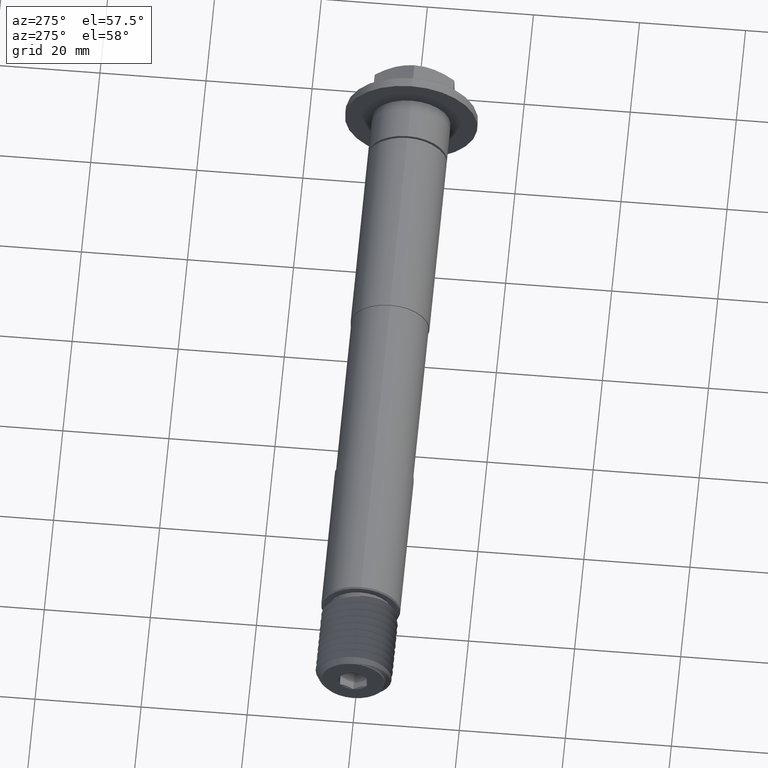
[diagram: clean part render]
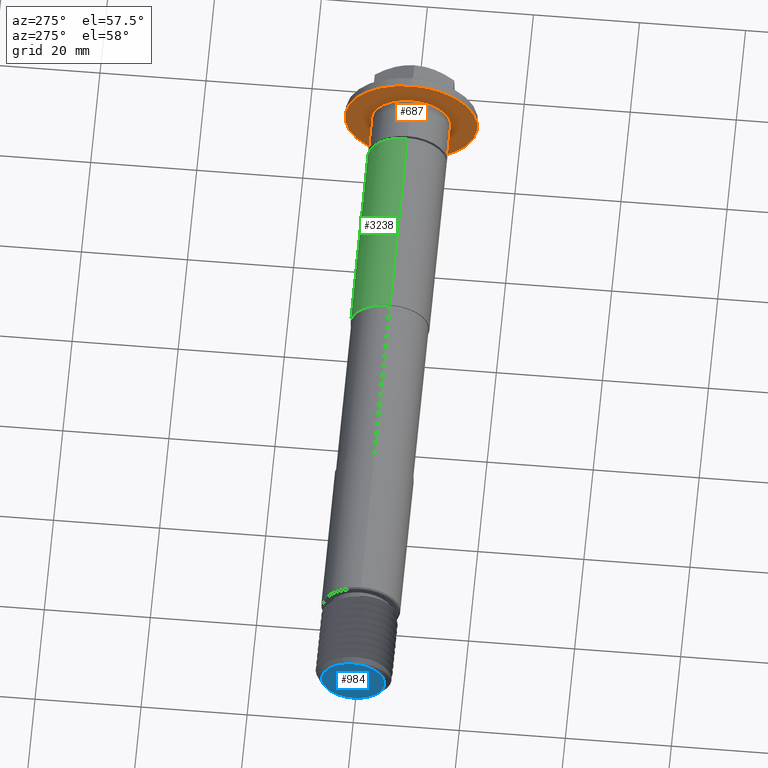
[diagram: same view with three faces highlighted in distinct colors, each labeled with its STEP entity id]
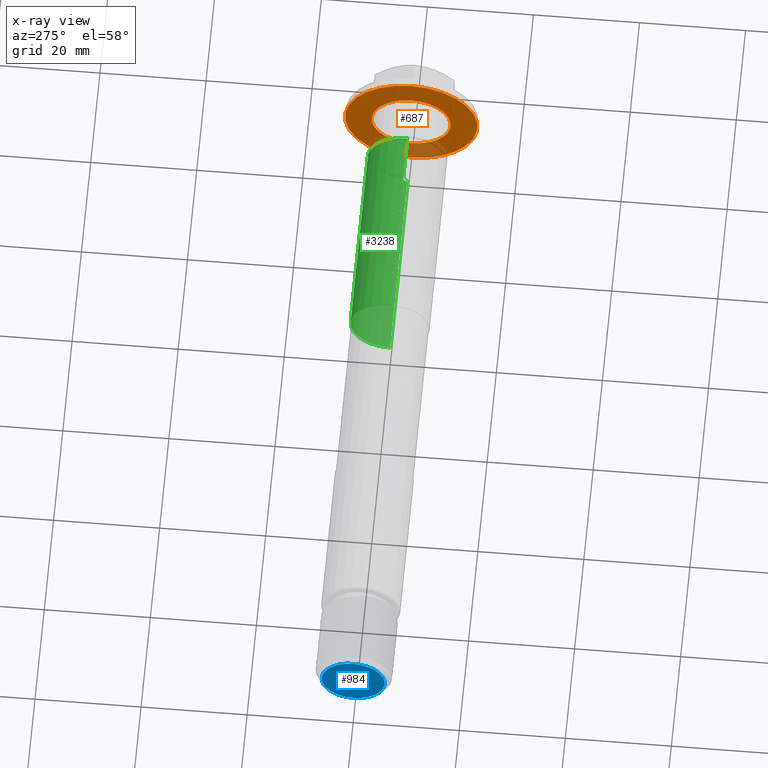
[diagram: x-ray of the same camera — body ghosted, the three highlighted faces saturated]
A machine part, auxiliary view with three faces highlighted in distinct colors.
The next image is the same camera in x-ray (body ghosted, the three faces saturated) — at least one of them is partly hidden behind the body in this view.
Their STEP definitions:

[orange] entity #687 — the highlighted planar face has unit normal (1, 0, 0).
#23 = PLANE ( 'NONE',  #1447 ) ;
#72 = ORIENTED_EDGE ( 'NONE', *, *, #3088, .T. ) ;
#126 = ORIENTED_EDGE ( 'NONE', *, *, #1805, .F. ) ;
#258 = AXIS2_PLACEMENT_3D ( 'NONE', #1402, #895, #650 ) ;
#383 = CIRCLE ( 'NONE', #1148, 7.454899999999999416 ) ;
#517 = VERTEX_POINT ( 'NONE', #905 ) ;
#650 = DIRECTION ( 'NONE',  ( 0.000000000000000000, 0.000000000000000000, -1.000000000000000000 ) ) ;
#661 = DIRECTION ( 'NONE',  ( 0.000000000000000000, 0.000000000000000000, -1.000000000000000000 ) ) ;
#687 = ADVANCED_FACE ( 'NONE', ( #2881, #3190 ), #23, .F. ) ;
#868 = VERTEX_POINT ( 'NONE', #1661 ) ;
#895 = DIRECTION ( 'NONE',  ( 1.000000000000000000, 0.000000000000000000, 0.000000000000000000 ) ) ;
#905 = CARTESIAN_POINT ( 'NONE',  ( 125.0000000000000000, 0.000000000000000000, 7.454899999999999416 ) ) ;
#951 = EDGE_LOOP ( 'NONE', ( #72, #1336 ) ) ;
#1076 = DIRECTION ( 'NONE',  ( 1.000000000000000000, 0.000000000000000000, 0.000000000000000000 ) ) ;
#1148 = AXIS2_PLACEMENT_3D ( 'NONE', #3373, #2247, #661 ) ;
#1186 = CIRCLE ( 'NONE', #2724, 7.454899999999999416 ) ;
#1276 = EDGE_CURVE ( 'NONE', #868, #517, #1186, .T. ) ;
#1297 = CIRCLE ( 'NONE', #258, 12.50000000000000000 ) ;
#1336 = ORIENTED_EDGE ( 'NONE', *, *, #1276, .T. ) ;
#1402 = CARTESIAN_POINT ( 'NONE',  ( 125.0000000000000000, 0.000000000000000000, 0.000000000000000000 ) ) ;
#1419 = AXIS2_PLACEMENT_3D ( 'NONE', #1737, #2529, #2825 ) ;
#1447 = AXIS2_PLACEMENT_3D ( 'NONE', #1865, #1076, #2125 ) ;
#1475 = VERTEX_POINT ( 'NONE', #3134 ) ;
#1555 = EDGE_CURVE ( 'NONE', #1475, #1785, #1297, .T. ) ;
#1661 = CARTESIAN_POINT ( 'NONE',  ( 125.0000000000000000, 9.129619422963602844E-16, -7.454899999999999416 ) ) ;
#1737 = CARTESIAN_POINT ( 'NONE',  ( 125.0000000000000000, 0.000000000000000000, 0.000000000000000000 ) ) ;
#1785 = VERTEX_POINT ( 'NONE', #3325 ) ;
#1805 = EDGE_CURVE ( 'NONE', #1785, #1475, #2786, .T. ) ;
#1829 = ORIENTED_EDGE ( 'NONE', *, *, #1555, .F. ) ;
#1865 = CARTESIAN_POINT ( 'NONE',  ( 125.0000000000000000, 0.000000000000000000, 0.000000000000000000 ) ) ;
#2125 = DIRECTION ( 'NONE',  ( 0.000000000000000000, 0.000000000000000000, -1.000000000000000000 ) ) ;
#2247 = DIRECTION ( 'NONE',  ( 1.000000000000000000, 0.000000000000000000, 0.000000000000000000 ) ) ;
#2319 = DIRECTION ( 'NONE',  ( 1.000000000000000000, 0.000000000000000000, 0.000000000000000000 ) ) ;
#2529 = DIRECTION ( 'NONE',  ( 1.000000000000000000, 0.000000000000000000, 0.000000000000000000 ) ) ;
#2595 = CARTESIAN_POINT ( 'NONE',  ( 125.0000000000000000, 0.000000000000000000, 0.000000000000000000 ) ) ;
#2724 = AXIS2_PLACEMENT_3D ( 'NONE', #2595, #2319, #3147 ) ;
#2786 = CIRCLE ( 'NONE', #1419, 12.50000000000000000 ) ;
#2825 = DIRECTION ( 'NONE',  ( 0.000000000000000000, 0.000000000000000000, -1.000000000000000000 ) ) ;
#2881 = FACE_BOUND ( 'NONE', #951, .T. ) ;
#3088 = EDGE_CURVE ( 'NONE', #517, #868, #383, .T. ) ;
#3134 = CARTESIAN_POINT ( 'NONE',  ( 125.0000000000000000, 0.000000000000000000, 12.50000000000000000 ) ) ;
#3145 = EDGE_LOOP ( 'NONE', ( #1829, #126 ) ) ;
#3147 = DIRECTION ( 'NONE',  ( 0.000000000000000000, 0.000000000000000000, -1.000000000000000000 ) ) ;
#3190 = FACE_OUTER_BOUND ( 'NONE', #3145, .T. ) ;
#3325 = CARTESIAN_POINT ( 'NONE',  ( 125.0000000000000000, 1.530808498934191127E-15, -12.50000000000000000 ) ) ;
#3373 = CARTESIAN_POINT ( 'NONE',  ( 125.0000000000000000, 0.000000000000000000, 0.000000000000000000 ) ) ;

[blue] entity #984 — the highlighted planar face has unit normal (1, 0, 0).
#14 = ORIENTED_EDGE ( 'NONE', *, *, #754, .F. ) ;
#91 = EDGE_CURVE ( 'NONE', #3024, #404, #2277, .T. ) ;
#104 = AXIS2_PLACEMENT_3D ( 'NONE', #364, #1685, #2944 ) ;
#226 = VERTEX_POINT ( 'NONE', #3376 ) ;
#364 = CARTESIAN_POINT ( 'NONE',  ( 0.000000000000000000, 0.000000000000000000, 0.000000000000000000 ) ) ;
#400 = EDGE_CURVE ( 'NONE', #226, #938, #3385, .T. ) ;
#404 = VERTEX_POINT ( 'NONE', #2130 ) ;
#524 = ORIENTED_EDGE ( 'NONE', *, *, #1237, .F. ) ;
#548 = CIRCLE ( 'NONE', #1646, 5.954900000000011850 ) ;
#552 = ORIENTED_EDGE ( 'NONE', *, *, #400, .F. ) ;
#569 = CIRCLE ( 'NONE', #1452, 2.886751345948129543 ) ;
#616 = DIRECTION ( 'NONE',  ( -1.000000000000000000, -0.000000000000000000, -0.000000000000000000 ) ) ;
#630 = CARTESIAN_POINT ( 'NONE',  ( 0.000000000000000000, 0.000000000000000000, 0.000000000000000000 ) ) ;
#633 = DIRECTION ( 'NONE',  ( 0.000000000000000000, 0.000000000000000000, 1.000000000000000000 ) ) ;
#684 = CARTESIAN_POINT ( 'NONE',  ( -0.000000000000000000, 4.336808689942017736E-16, -2.886751345948128655 ) ) ;
#742 = DIRECTION ( 'NONE',  ( -1.000000000000000000, -0.000000000000000000, -0.000000000000000000 ) ) ;
#754 = EDGE_CURVE ( 'NONE', #1109, #1032, #3314, .T. ) ;
#796 = EDGE_LOOP ( 'NONE', ( #1010, #1906, #552, #2248, #14, #524 ) ) ;
#830 = CARTESIAN_POINT ( 'NONE',  ( 0.000000000000000000, 2.500000000000000444, -1.443375672974065216 ) ) ;
#867 = DIRECTION ( 'NONE',  ( 0.000000000000000000, 0.000000000000000000, -1.000000000000000000 ) ) ;
#938 = VERTEX_POINT ( 'NONE', #830 ) ;
#949 = CARTESIAN_POINT ( 'NONE',  ( 0.000000000000000000, 0.000000000000000000, 0.000000000000000000 ) ) ;
#963 = DIRECTION ( 'NONE',  ( 0.000000000000000000, 0.000000000000000000, 1.000000000000000000 ) ) ;
#984 = ADVANCED_FACE ( 'NONE', ( #3187, #1944 ), #1387, .F. ) ;
#985 = DIRECTION ( 'NONE',  ( 0.000000000000000000, 8.881784197001252323E-16, -1.000000000000000000 ) ) ;
#1010 = ORIENTED_EDGE ( 'NONE', *, *, #1599, .F. ) ;
#1032 = VERTEX_POINT ( 'NONE', #1140 ) ;
#1082 = DIRECTION ( 'NONE',  ( 0.000000000000000000, 0.000000000000000000, 1.000000000000000000 ) ) ;
#1109 = VERTEX_POINT ( 'NONE', #1702 ) ;
#1138 = CIRCLE ( 'NONE', #3226, 2.886751345948129543 ) ;
#1140 = CARTESIAN_POINT ( 'NONE',  ( 0.000000000000000000, -4.336808689942017736E-16, 2.886751345948129543 ) ) ;
#1168 = DIRECTION ( 'NONE',  ( -1.000000000000000000, 0.000000000000000000, 0.000000000000000000 ) ) ;
#1237 = EDGE_CURVE ( 'NONE', #1929, #1109, #569, .T. ) ;
#1249 = CARTESIAN_POINT ( 'NONE',  ( 0.000000000000000000, 0.000000000000000000, -5.954900000000012739 ) ) ;
#1387 = PLANE ( 'NONE',  #3203 ) ;
#1452 = AXIS2_PLACEMENT_3D ( 'NONE', #949, #1168, #2218 ) ;
#1539 = DIRECTION ( 'NONE',  ( -1.000000000000000000, 0.000000000000000000, 0.000000000000000000 ) ) ;
#1586 = EDGE_LOOP ( 'NONE', ( #2707, #1768 ) ) ;
#1599 = EDGE_CURVE ( 'NONE', #2083, #1929, #1738, .T. ) ;
#1646 = AXIS2_PLACEMENT_3D ( 'NONE', #2339, #742, #985 ) ;
#1656 = EDGE_CURVE ( 'NONE', #1032, #226, #3060, .T. ) ;
#1685 = DIRECTION ( 'NONE',  ( -1.000000000000000000, 0.000000000000000000, 0.000000000000000000 ) ) ;
#1702 = CARTESIAN_POINT ( 'NONE',  ( 0.000000000000000000, -2.500000000000001332, 1.443375672974063439 ) ) ;
#1719 = EDGE_CURVE ( 'NONE', #938, #2083, #1138, .T. ) ;
#1738 = CIRCLE ( 'NONE', #104, 2.886751345948129543 ) ;
#1768 = ORIENTED_EDGE ( 'NONE', *, *, #91, .T. ) ;
#1880 = AXIS2_PLACEMENT_3D ( 'NONE', #2092, #2915, #2108 ) ;
#1906 = ORIENTED_EDGE ( 'NONE', *, *, #1719, .F. ) ;
#1929 = VERTEX_POINT ( 'NONE', #2336 ) ;
#1944 = FACE_OUTER_BOUND ( 'NONE', #1586, .T. ) ;
#2083 = VERTEX_POINT ( 'NONE', #684 ) ;
#2092 = CARTESIAN_POINT ( 'NONE',  ( 0.000000000000000000, 0.000000000000000000, 0.000000000000000000 ) ) ;
#2108 = DIRECTION ( 'NONE',  ( 0.000000000000000000, 0.000000000000000000, 1.000000000000000000 ) ) ;
#2130 = CARTESIAN_POINT ( 'NONE',  ( 0.000000000000000000, -1.014488807146294970E-13, 5.954900000000012739 ) ) ;
#2218 = DIRECTION ( 'NONE',  ( 0.000000000000000000, 0.000000000000000000, 1.000000000000000000 ) ) ;
#2248 = ORIENTED_EDGE ( 'NONE', *, *, #1656, .F. ) ;
#2277 = CIRCLE ( 'NONE', #2773, 5.954900000000011850 ) ;
#2336 = CARTESIAN_POINT ( 'NONE',  ( 0.000000000000000000, -2.500000000000001332, -1.443375672974064328 ) ) ;
#2339 = CARTESIAN_POINT ( 'NONE',  ( 0.000000000000000000, 0.000000000000000000, 0.000000000000000000 ) ) ;
#2387 = AXIS2_PLACEMENT_3D ( 'NONE', #2645, #3196, #1082 ) ;
#2437 = DIRECTION ( 'NONE',  ( 0.000000000000000000, 0.000000000000000000, -1.000000000000000000 ) ) ;
#2505 = AXIS2_PLACEMENT_3D ( 'NONE', #2976, #2702, #633 ) ;
#2645 = CARTESIAN_POINT ( 'NONE',  ( 0.000000000000000000, 0.000000000000000000, 0.000000000000000000 ) ) ;
#2702 = DIRECTION ( 'NONE',  ( -1.000000000000000000, 0.000000000000000000, 0.000000000000000000 ) ) ;
#2703 = CARTESIAN_POINT ( 'NONE',  ( 0.000000000000000000, 0.000000000000000000, 0.000000000000000000 ) ) ;
#2707 = ORIENTED_EDGE ( 'NONE', *, *, #2726, .T. ) ;
#2726 = EDGE_CURVE ( 'NONE', #404, #3024, #548, .T. ) ;
#2773 = AXIS2_PLACEMENT_3D ( 'NONE', #630, #616, #2437 ) ;
#2807 = CARTESIAN_POINT ( 'NONE',  ( 0.000000000000000000, 0.000000000000000000, 0.000000000000000000 ) ) ;
#2915 = DIRECTION ( 'NONE',  ( -1.000000000000000000, 0.000000000000000000, 0.000000000000000000 ) ) ;
#2944 = DIRECTION ( 'NONE',  ( 0.000000000000000000, 0.000000000000000000, 1.000000000000000000 ) ) ;
#2976 = CARTESIAN_POINT ( 'NONE',  ( 0.000000000000000000, 0.000000000000000000, 0.000000000000000000 ) ) ;
#2996 = DIRECTION ( 'NONE',  ( 1.000000000000000000, 0.000000000000000000, 0.000000000000000000 ) ) ;
#3024 = VERTEX_POINT ( 'NONE', #1249 ) ;
#3060 = CIRCLE ( 'NONE', #2505, 2.886751345948129543 ) ;
#3187 = FACE_BOUND ( 'NONE', #796, .T. ) ;
#3196 = DIRECTION ( 'NONE',  ( -1.000000000000000000, 0.000000000000000000, 0.000000000000000000 ) ) ;
#3203 = AXIS2_PLACEMENT_3D ( 'NONE', #2703, #2996, #867 ) ;
#3226 = AXIS2_PLACEMENT_3D ( 'NONE', #2807, #1539, #963 ) ;
#3314 = CIRCLE ( 'NONE', #1880, 2.886751345948129543 ) ;
#3376 = CARTESIAN_POINT ( 'NONE',  ( 0.000000000000000000, 2.500000000000000444, 1.443375672974065660 ) ) ;
#3385 = CIRCLE ( 'NONE', #2387, 2.886751345948129543 ) ;

[green] entity #3238 — the highlighted cylindrical surface (partial cylindrical patch) has radius 7.4549 mm, axis along (-1, -0, -0).
#57 = EDGE_CURVE ( 'NONE', #459, #2914, #1939, .T. ) ;
#71 = EDGE_CURVE ( 'NONE', #1211, #2914, #1520, .T. ) ;
#113 = DIRECTION ( 'NONE',  ( 0.000000000000000000, 0.000000000000000000, 1.000000000000000000 ) ) ;
#252 = CARTESIAN_POINT ( 'NONE',  ( 125.0000000000000000, 0.000000000000000000, 7.454899999999999416 ) ) ;
#294 = VECTOR ( 'NONE', #493, 1000.000000000000000 ) ;
#305 = VECTOR ( 'NONE', #395, 1000.000000000000000 ) ;
#395 = DIRECTION ( 'NONE',  ( -1.000000000000000000, -0.000000000000000000, -0.000000000000000000 ) ) ;
#402 = CARTESIAN_POINT ( 'NONE',  ( 79.29999999999999716, 0.000000000000000000, 7.454899999999999416 ) ) ;
#459 = VERTEX_POINT ( 'NONE', #3019 ) ;
#484 = CIRCLE ( 'NONE', #2843, 7.454899999999999416 ) ;
#493 = DIRECTION ( 'NONE',  ( -1.000000000000000000, -0.000000000000000000, -0.000000000000000000 ) ) ;
#613 = CARTESIAN_POINT ( 'NONE',  ( 116.5600000000000165, 0.000000000000000000, 0.000000000000000000 ) ) ;
#731 = VERTEX_POINT ( 'NONE', #2344 ) ;
#761 = ORIENTED_EDGE ( 'NONE', *, *, #3349, .F. ) ;
#792 = AXIS2_PLACEMENT_3D ( 'NONE', #1164, #2956, #113 ) ;
#801 = DIRECTION ( 'NONE',  ( -1.000000000000000000, -0.000000000000000000, -0.000000000000000000 ) ) ;
#815 = EDGE_CURVE ( 'NONE', #731, #1211, #1096, .T. ) ;
#1045 = CYLINDRICAL_SURFACE ( 'NONE', #2477, 7.454899999999999416 ) ;
#1096 = LINE ( 'NONE', #252, #294 ) ;
#1164 = CARTESIAN_POINT ( 'NONE',  ( 79.29999999999999716, 0.000000000000000000, 0.000000000000000000 ) ) ;
#1211 = VERTEX_POINT ( 'NONE', #402 ) ;
#1327 = EDGE_LOOP ( 'NONE', ( #761, #2991, #1966, #3061 ) ) ;
#1520 = CIRCLE ( 'NONE', #792, 7.454899999999999416 ) ;
#1669 = CARTESIAN_POINT ( 'NONE',  ( 125.0000000000000000, 9.129619422963602844E-16, -7.454899999999999416 ) ) ;
#1939 = LINE ( 'NONE', #1669, #305 ) ;
#1966 = ORIENTED_EDGE ( 'NONE', *, *, #71, .F. ) ;
#2145 = DIRECTION ( 'NONE',  ( 1.000000000000000000, 0.000000000000000000, 0.000000000000000000 ) ) ;
#2344 = CARTESIAN_POINT ( 'NONE',  ( 116.5600000000000165, 0.000000000000000000, 7.454899999999999416 ) ) ;
#2347 = FACE_OUTER_BOUND ( 'NONE', #1327, .T. ) ;
#2364 = CARTESIAN_POINT ( 'NONE',  ( 125.0000000000000000, 0.000000000000000000, 0.000000000000000000 ) ) ;
#2477 = AXIS2_PLACEMENT_3D ( 'NONE', #2364, #801, #3140 ) ;
#2711 = DIRECTION ( 'NONE',  ( 0.000000000000000000, 0.000000000000000000, -1.000000000000000000 ) ) ;
#2843 = AXIS2_PLACEMENT_3D ( 'NONE', #613, #2145, #2711 ) ;
#2914 = VERTEX_POINT ( 'NONE', #3201 ) ;
#2956 = DIRECTION ( 'NONE',  ( -1.000000000000000000, 0.000000000000000000, 0.000000000000000000 ) ) ;
#2991 = ORIENTED_EDGE ( 'NONE', *, *, #57, .T. ) ;
#3019 = CARTESIAN_POINT ( 'NONE',  ( 116.5600000000000165, 9.129619422963602844E-16, -7.454899999999999416 ) ) ;
#3061 = ORIENTED_EDGE ( 'NONE', *, *, #815, .F. ) ;
#3140 = DIRECTION ( 'NONE',  ( 0.000000000000000000, 0.000000000000000000, 1.000000000000000000 ) ) ;
#3201 = CARTESIAN_POINT ( 'NONE',  ( 79.29999999999999716, 9.129619422963602844E-16, -7.454899999999999416 ) ) ;
#3238 = ADVANCED_FACE ( 'NONE', ( #2347 ), #1045, .T. ) ;
#3349 = EDGE_CURVE ( 'NONE', #459, #731, #484, .T. ) ;